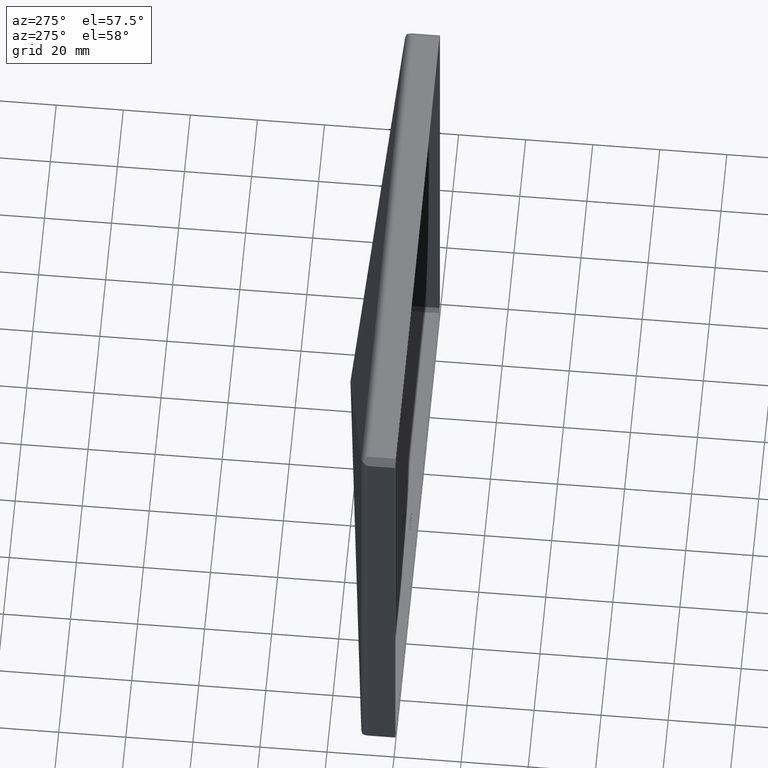
[diagram: clean part render]
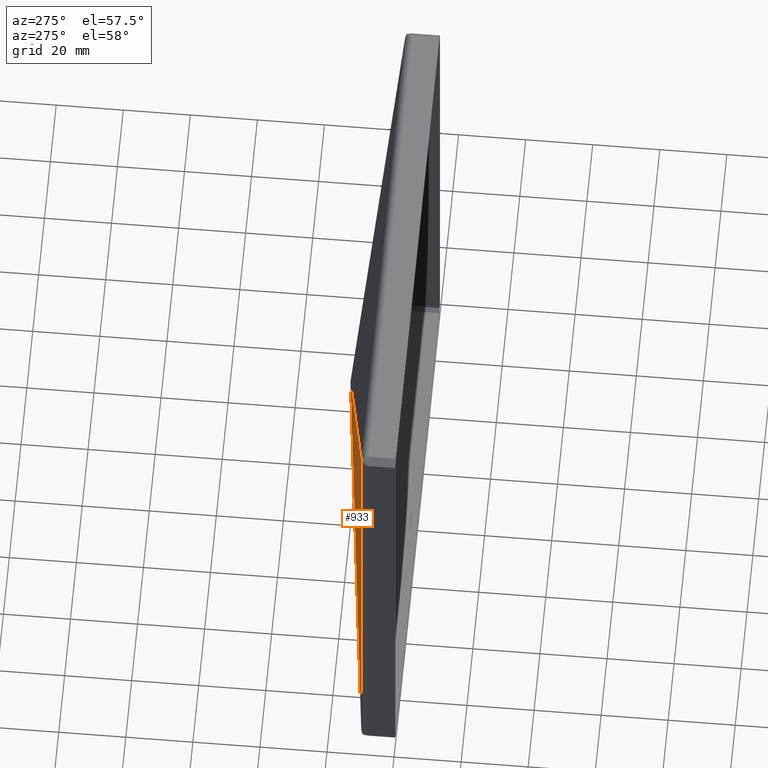
[diagram: same view with one face highlighted and labeled with its STEP entity id]
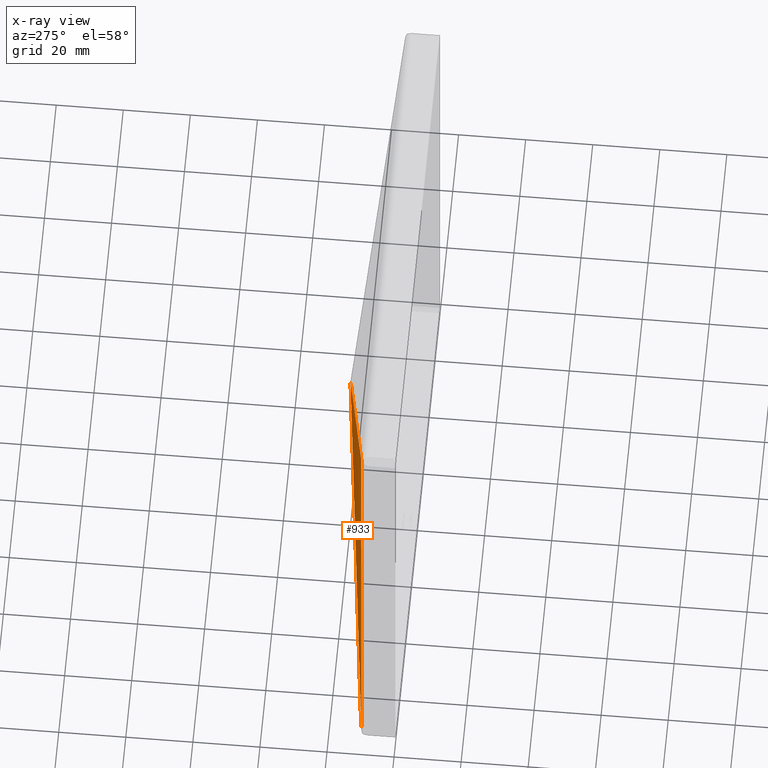
[diagram: x-ray of the same camera — body ghosted, the highlighted face saturated]
A machine part, auxiliary view. The second image highlights one B-rep face of the part: STEP entity #933.
The next image is the same camera in x-ray: the body ghosted, the highlighted face saturated — about 0% of this face is hidden behind the body in this view.
In plain terms, the highlighted planar face has unit normal (0.1296, -0.9916, 0).
Its self-contained STEP definition (entity closure, byte-faithful):
#93 = CARTESIAN_POINT ( 'NONE',  ( -74.32406770863393319, 10.28445979619672812, -74.32406770863390477 ) ) ;
#229 = ORIENTED_EDGE ( 'NONE', *, *, #10855, .F. ) ;
#368 = VERTEX_POINT ( 'NONE', #4301 ) ;
#697 = EDGE_CURVE ( 'NONE', #3627, #9577, #3158, .T. ) ;
#933 = ADVANCED_FACE ( 'NONE', ( #2206 ), #12570, .F. ) ;
#1126 = EDGE_CURVE ( 'NONE', #9577, #368, #2041, .T. ) ;
#1213 = LINE ( 'NONE', #12256, #4138 ) ;
#1378 = DIRECTION ( 'NONE',  ( -0.000000000000000000, -0.000000000000000000, 1.000000000000000000 ) ) ;
#1625 = CARTESIAN_POINT ( 'NONE',  ( 0.4490169378204289519, 20.05955091641665433, -0.4490169378204289519 ) ) ;
#1747 = VECTOR ( 'NONE', #4426, 1000.000000000000000 ) ;
#1845 = ORIENTED_EDGE ( 'NONE', *, *, #697, .F. ) ;
#2041 = LINE ( 'NONE', #1625, #4072 ) ;
#2206 = FACE_OUTER_BOUND ( 'NONE', #7359, .T. ) ;
#2571 = VECTOR ( 'NONE', #1378, 1000.000000000000000 ) ;
#2706 = DIRECTION ( 'NONE',  ( 0.9915628165856769094, 0.1296270834535715732, 0.000000000000000000 ) ) ;
#3004 = ORIENTED_EDGE ( 'NONE', *, *, #1126, .F. ) ;
#3158 = LINE ( 'NONE', #9486, #1747 ) ;
#3610 = AXIS2_PLACEMENT_3D ( 'NONE', #6718, #5814, #2706 ) ;
#3627 = VERTEX_POINT ( 'NONE', #4191 ) ;
#4072 = VECTOR ( 'NONE', #4563, 1000.000000000000000 ) ;
#4138 = VECTOR ( 'NONE', #5489, 1000.000000000000000 ) ;
#4191 = CARTESIAN_POINT ( 'NONE',  ( -0.01296270834537371908, 19.99915628165857484, -0.01296270834535788972 ) ) ;
#4301 = CARTESIAN_POINT ( 'NONE',  ( -74.32406770863386214, 10.28445979619673878, 74.32406770863393319 ) ) ;
#4426 = DIRECTION ( 'NONE',  ( -0.000000000000000000, -0.000000000000000000, 1.000000000000000000 ) ) ;
#4563 = DIRECTION ( 'NONE',  ( -0.7041048305583798017, -0.09204767877957999167, 0.7041048305583811340 ) ) ;
#5489 = DIRECTION ( 'NONE',  ( 0.7041048305583805789, 0.09204767877958007494, 0.7041048305583802458 ) ) ;
#5814 = DIRECTION ( 'NONE',  ( 0.1296270834535715732, -0.9915628165856769094, 0.000000000000000000 ) ) ;
#6141 = ORIENTED_EDGE ( 'NONE', *, *, #10580, .T. ) ;
#6334 = LINE ( 'NONE', #12072, #2571 ) ;
#6718 = CARTESIAN_POINT ( 'NONE',  ( -74.32406770863393319, 10.28445979619672812, -76.50000000000001421 ) ) ;
#7359 = EDGE_LOOP ( 'NONE', ( #229, #6141, #3004, #1845 ) ) ;
#9486 = CARTESIAN_POINT ( 'NONE',  ( -0.01296270834535789493, 19.99915628165857484, -76.50000000000001421 ) ) ;
#9577 = VERTEX_POINT ( 'NONE', #12294 ) ;
#10580 = EDGE_CURVE ( 'NONE', #11136, #368, #6334, .T. ) ;
#10855 = EDGE_CURVE ( 'NONE', #11136, #3627, #1213, .T. ) ;
#11136 = VERTEX_POINT ( 'NONE', #93 ) ;
#12072 = CARTESIAN_POINT ( 'NONE',  ( -74.32406770863393319, 10.28445979619672812, -76.50000000000001421 ) ) ;
#12256 = CARTESIAN_POINT ( 'NONE',  ( -75.40281576177345357, 10.14343498004721056, -75.40281576177342515 ) ) ;
#12294 = CARTESIAN_POINT ( 'NONE',  ( -0.01296270834535816381, 19.99915628165857484, 0.01296270834535957067 ) ) ;
#12570 = PLANE ( 'NONE',  #3610 ) ;